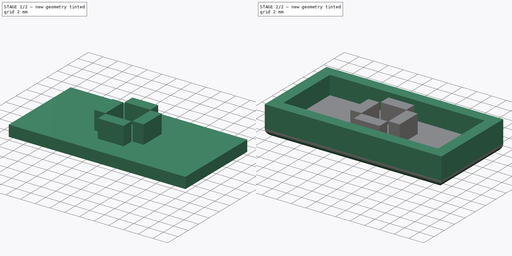
[diagram: build sequence overview — one tinted view per stage of 2, left to right]
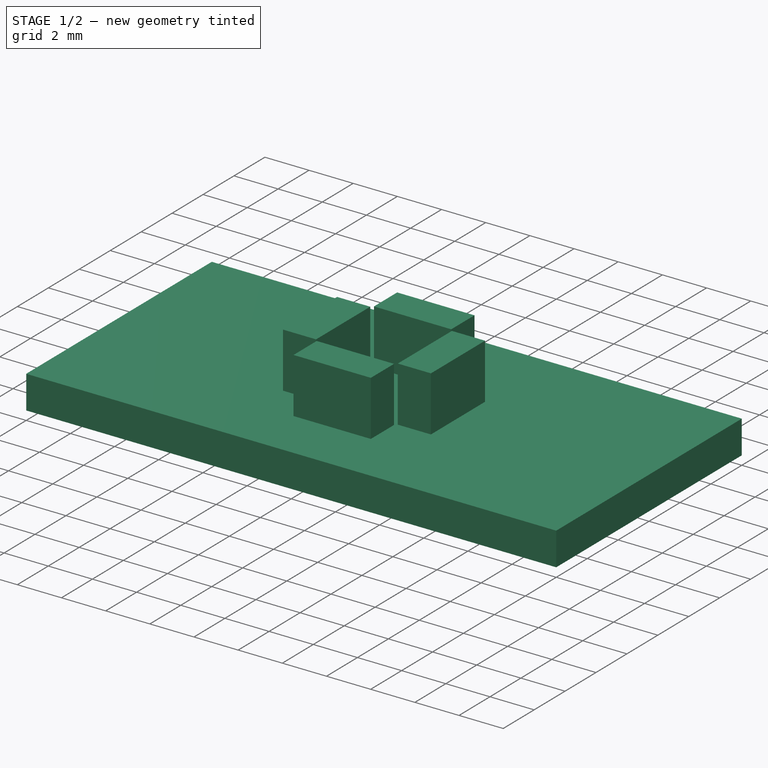
[diagram: stage 1 of 2 — iso view after this stage's code; geometry added in this stage tinted green]
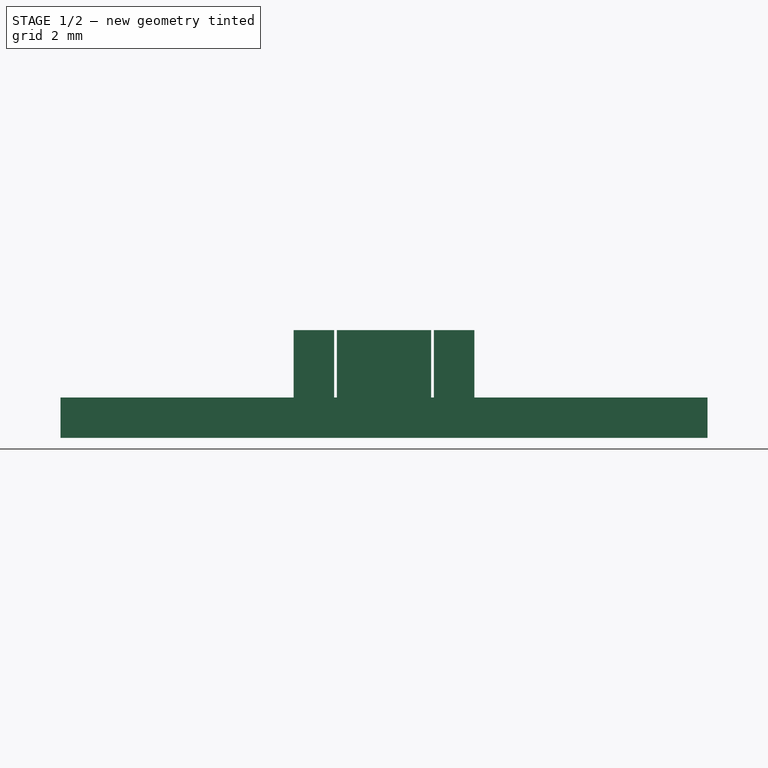
[diagram: stage 1 of 2 — front view after this stage's code; geometry added in this stage tinted green]
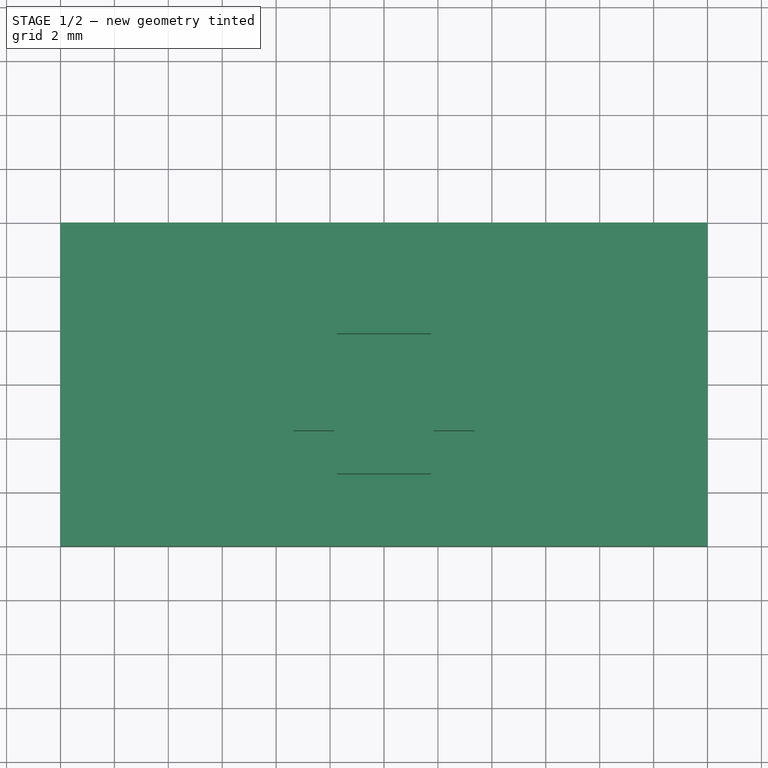
[diagram: stage 1 of 2 — top view after this stage's code; geometry added in this stage tinted green]
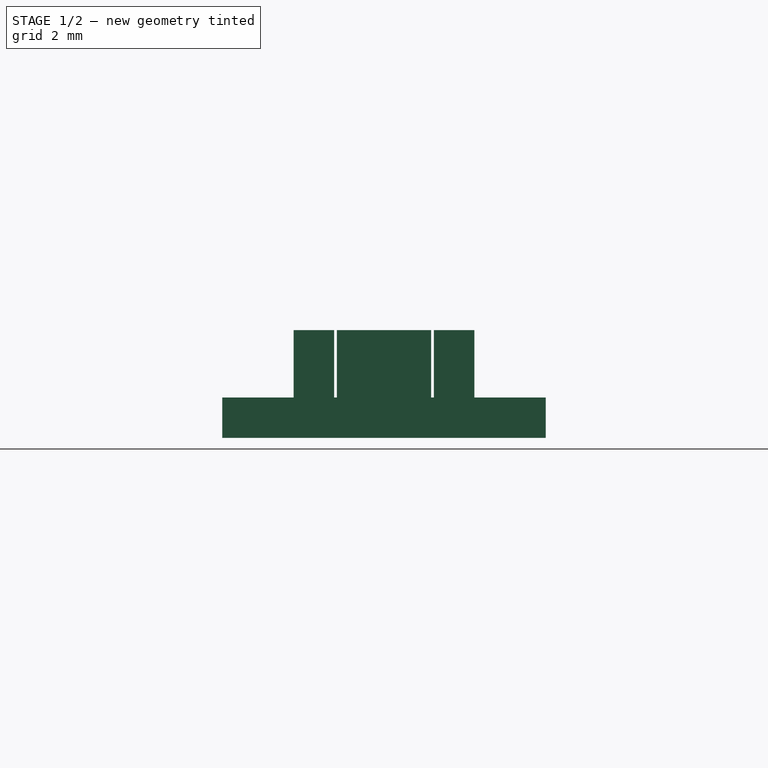
[diagram: stage 1 of 2 — right view after this stage's code; geometry added in this stage tinted green]
FCSTD DOCUMENT  (FreeCAD 0.19R24291 (Git))
Label: keys-return
License: All rights reserved
LicenseURL: http://en.wikipedia.org/wiki/All_rights_reserved
objects: Sketcher::SketchObject×3, PartDesign::Pad×3, Spreadsheet::Sheet×1, PartDesign::Fillet×1, PartDesign::Body×1
note: 12 computed .brp shape members not serialized (recipe doc carries the construction recipe); baked Part::Feature solids carry a one-line shape summary decoded from their .brp

FEATURE [Spreadsheet::Sheet] Spreadsheet  label="Masse"
  cells = A2=Tastenlänge; B2(tab)==24mm; A3=Tastenknuppel; B3(auf)==3.5mm; A4=Höhe Aufnahme; B4(aufh)==4mm; A5=Tastenbreite; B5(keyl)==12mm; A6=Tastenhöhe; B6(keyh)==4mm; A7=Wandstärke1; B7(w1)==1.5mm; A8=Wandstärke2; B8(w2)==1.5mm; A9=Tolleranz; B9(Tol)==0.1mm
FEATURE [Sketcher::SketchObject] Sketch
  FullyConstrained = true
  MapMode = 5
  Support = -> [XY_Plane]
  expr: Constraints[5] = Spreadsheet.keyl
  expr: Constraints[9] = Spreadsheet.tab
  sketch-geometry (4):
    g0: LineSegment StartX=-12 StartY=6 StartZ=0 EndX=12 EndY=6 EndZ=0
    g1: LineSegment StartX=12 StartY=6 StartZ=0 EndX=12 EndY=-6 EndZ=0
    g2: LineSegment StartX=12 StartY=-6 StartZ=0 EndX=-12 EndY=-6 EndZ=0
    g3: LineSegment StartX=-12 StartY=-6 StartZ=0 EndX=-12 EndY=6 EndZ=0
  constraints (10):
    c: Coincident(g1,g2)
    c: Coincident(g2,g3)
    c: Coincident(g3,g0)
    c: Horizontal(g2)
    c: Vertical(g3)
    c: DistanceY(g3,g3) = 12
    c: Coincident(g0,g1)
    c: Symmetric(g0,g0,g-2)
    c: Symmetric(g1,g0,g-1)
    c: DistanceX(g0,g0) = 24
FEATURE [PartDesign::Pad] Pad
  Direction = (1,1,1)
  Length = 1.5
  Length2 = 100
  Profile = -> Sketch
  Type = 0
  expr: Length = Spreadsheet.w2
FEATURE [Sketcher::SketchObject] Sketch002
  FullyConstrained = true
  MapMode = 5
  Support = -> [XY_Plane]
  expr: Constraints[42] = Spreadsheet.w1
  expr: Constraints[41] = Spreadsheet.auf
  expr: Constraints[40] = Spreadsheet.Tol
  expr: Constraints[38] = Spreadsheet.auf + 2 * Spreadsheet.Tol
  expr: Constraints[37] = Spreadsheet.auf + 2 * Spreadsheet.Tol
  sketch-geometry (16):
    g0: LineSegment StartX=-1.75 StartY=3.35 StartZ=0 EndX=1.75 EndY=3.35 EndZ=0
    g1: LineSegment StartX=1.75 StartY=3.35 StartZ=0 EndX=1.75 EndY=1.85 EndZ=0
    g2: LineSegment StartX=1.75 StartY=1.85 StartZ=0 EndX=-1.75 EndY=1.85 EndZ=0
    g3: LineSegment StartX=-1.75 StartY=1.85 StartZ=0 EndX=-1.75 EndY=3.35 EndZ=0
    g4: LineSegment StartX=-1.75 StartY=-1.85 StartZ=0 EndX=1.75 EndY=-1.85 EndZ=0
    g5: LineSegment StartX=1.75 StartY=-1.85 StartZ=0 EndX=1.75 EndY=-3.35 EndZ=0
    g6: LineSegment StartX=1.75 StartY=-3.35 StartZ=0 EndX=-1.75 EndY=-3.35 EndZ=0
    g7: LineSegment StartX=-1.75 StartY=-3.35 StartZ=0 EndX=-1.75 EndY=-1.85 EndZ=0
    g8: LineSegment StartX=-3.35 StartY=1.75 StartZ=0 EndX=-1.85 EndY=1.75 EndZ=0
    g9: LineSegment StartX=-1.85 StartY=1.75 StartZ=0 EndX=-1.85 EndY=-1.75 EndZ=0
    g10: LineSegment StartX=-1.85 StartY=-1.75 StartZ=0 EndX=-3.35 EndY=-1.75 EndZ=0
    g11: LineSegment StartX=-3.35 StartY=-1.75 StartZ=0 EndX=-3.35 EndY=1.75 EndZ=0
    g12: LineSegment StartX=1.85 StartY=1.75 StartZ=0 EndX=3.35 EndY=1.75 EndZ=0
    g13: LineSegment StartX=3.35 StartY=1.75 StartZ=0 EndX=3.35 EndY=-1.75 EndZ=0
    g14: LineSegment StartX=3.35 StartY=-1.75 StartZ=0 EndX=1.85 EndY=-1.75 EndZ=0
    g15: LineSegment StartX=1.85 StartY=-1.75 StartZ=0 EndX=1.85 EndY=1.75 EndZ=0
  constraints (44):
    c: Coincident(g0,g1)
    c: Coincident(g1,g2)
    c: Coincident(g2,g3)
    c: Coincident(g3,g0)
    c: Horizontal(g0)
    c: Vertical(g1)
    c: Vertical(g3)
    c: Coincident(g4,g5)
    c: Coincident(g5,g6)
    c: Coincident(g6,g7)
    c: Coincident(g7,g4)
    c: Horizontal(g4)
    c: Horizontal(g6)
    c: Vertical(g5)
    c: Vertical(g7)
    c: Coincident(g8,g9)
    c: Coincident(g9,g10)
    c: Coincident(g10,g11)
    c: Coincident(g11,g8)
    c: Horizontal(g8)
    c: Horizontal(g10)
    c: Vertical(g9)
    c: Coincident(g12,g13)
    c: Coincident(g13,g14)
    c: Coincident(g14,g15)
    c: Coincident(g15,g12)
    c: Horizontal(g12)
    c: Horizontal(g14)
    c: Vertical(g15)
    c: Equal(g14,g7)
    c: Equal(g7,g8)
    c: Equal(g8,g1)
    c: Equal(g15,g4)
    c: Equal(g4,g9)
    c: Equal(g9,g2)
    c: Symmetric(g10,g8,g-1)
    c: Symmetric(g13,g12,g-1)
    c: DistanceX(g8,g12) = 3.7
    c: DistanceY(g4,g1) = 3.7
    c: Symmetric(g4,g1,g-1)
    c: DistanceX(g8,g0) = 0.1
    c: DistanceX(g0,g0) = 3.5
    c: DistanceY(g1,g0) = 1.5
    c: Symmetric(g2,g1,g-2)
FEATURE [Sketcher::SketchObject] Sketch003
  FullyConstrained = true
  MapMode = 5
  Support = -> [XY_Plane]
  expr: Constraints[18] = Spreadsheet.tab
  expr: Constraints[19] = Spreadsheet.keyl
  expr: Constraints[20] = Spreadsheet.keyl - 2 * Spreadsheet.w2
  expr: Constraints[21] = Spreadsheet.tab - 2 * Spreadsheet.w2
  sketch-geometry (8):
    g0: LineSegment StartX=-12 StartY=6 StartZ=0 EndX=12 EndY=6 EndZ=0
    g1: LineSegment StartX=12 StartY=6 StartZ=0 EndX=12 EndY=-6 EndZ=0
    g2: LineSegment StartX=12 StartY=-6 StartZ=0 EndX=-12 EndY=-6 EndZ=0
    g3: LineSegment StartX=-12 StartY=-6 StartZ=0 EndX=-12 EndY=6 EndZ=0
    g4: LineSegment StartX=-10.5 StartY=4.5 StartZ=0 EndX=10.5 EndY=4.5 EndZ=0
    g5: LineSegment StartX=10.5 StartY=4.5 StartZ=0 EndX=10.5 EndY=-4.5 EndZ=0
    g6: LineSegment StartX=10.5 StartY=-4.5 StartZ=0 EndX=-10.5 EndY=-4.5 EndZ=0
    g7: LineSegment StartX=-10.5 StartY=-4.5 StartZ=0 EndX=-10.5 EndY=4.5 EndZ=0
  constraints (22):
    c: Coincident(g0,g1)
    c: Coincident(g1,g2)
    c: Coincident(g2,g3)
    c: Coincident(g3,g0)
    c: Horizontal(g0)
    c: Horizontal(g2)
    c: Vertical(g1)
    c: Vertical(g3)
    c: Coincident(g4,g5)
    c: Coincident(g5,g6)
    c: Coincident(g6,g7)
    c: Coincident(g7,g4)
    c: Horizontal(g4)
    c: Horizontal(g6)
    c: Vertical(g5)
    c: Vertical(g7)
    c: Symmetric(g6,g4,g-1)
    c: Symmetric(g2,g0,g-1)
    c: DistanceX(g0,g0) = 24
    c: DistanceY(g3,g3) = 12
    c: DistanceY(g5,g5) = 9
    c: DistanceX(g6,g6) = 21
FEATURE [PartDesign::Pad] Pad002
  BaseFeature = -> Pad
  Direction = (1,1,1)
  Length = 4
  Length2 = 100
  Profile = -> Sketch002
  Refine = true
  Type = 0
  expr: Length = Spreadsheet.aufh
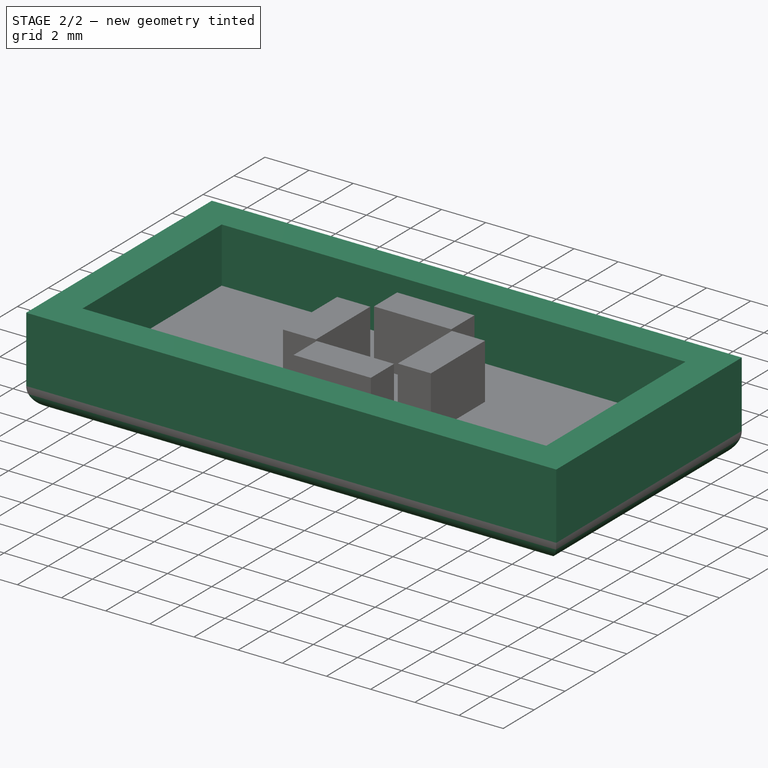
[diagram: stage 2 of 2 — iso view after this stage's code; geometry added in this stage tinted green]
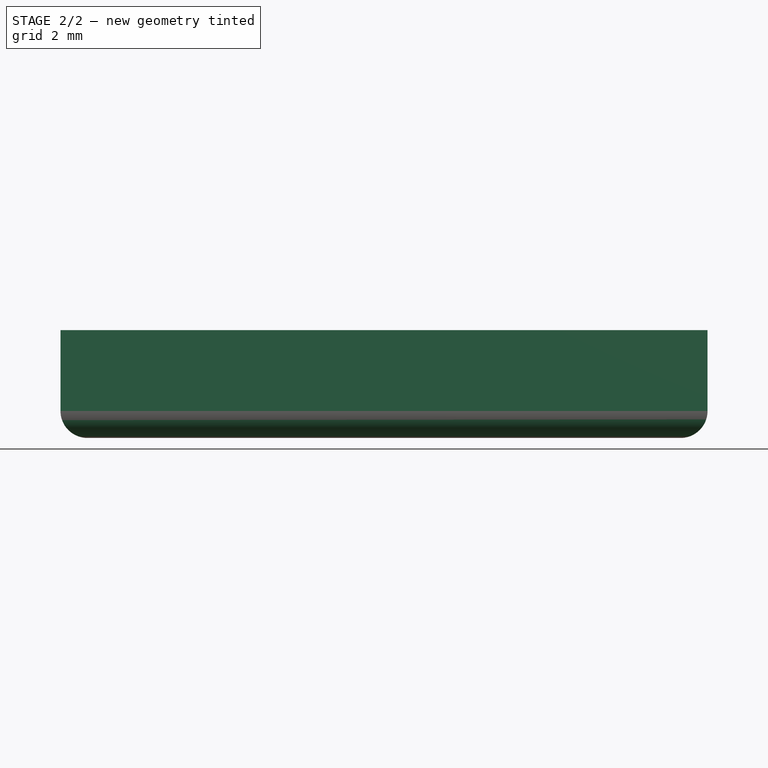
[diagram: stage 2 of 2 — front view after this stage's code; geometry added in this stage tinted green]
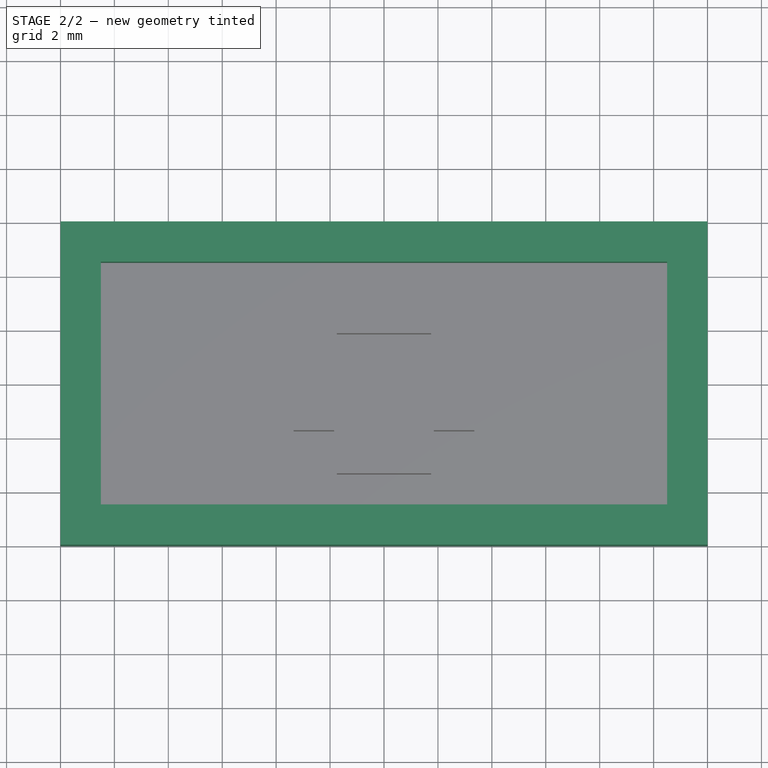
[diagram: stage 2 of 2 — top view after this stage's code; geometry added in this stage tinted green]
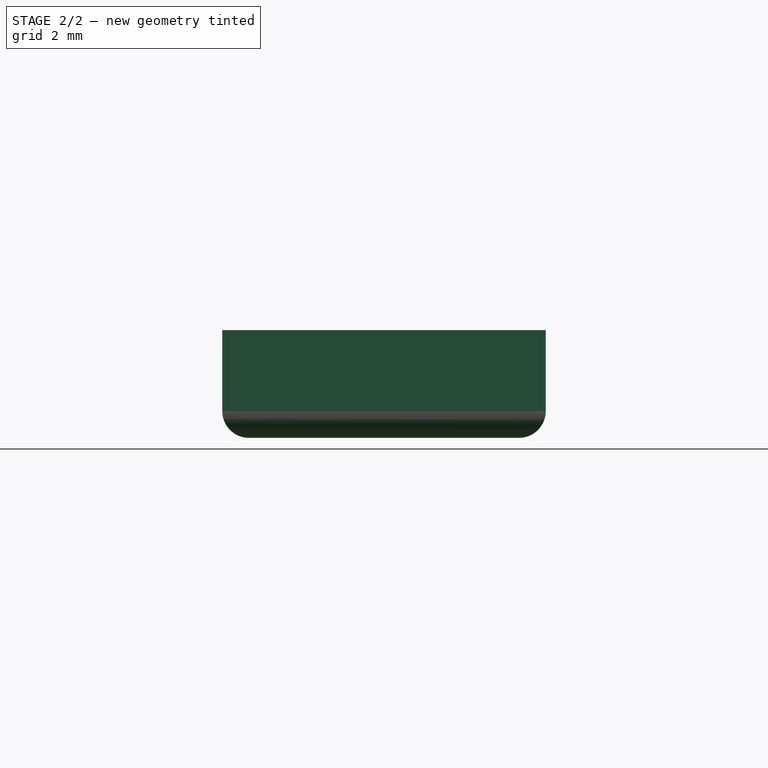
[diagram: stage 2 of 2 — right view after this stage's code; geometry added in this stage tinted green]
FEATURE [PartDesign::Pad] Pad003
  BaseFeature = -> Pad002
  Direction = (1,1,1)
  Length = 4
  Length2 = 100
  Profile = -> Sketch003
  Refine = true
  Type = 0
  expr: Length = Spreadsheet.keyh
FEATURE [PartDesign::Fillet] Fillet
  Base = -> Pad003 [Edge69,Edge72,Edge71,Edge67]
  BaseFeature = -> Pad003
  Radius = 1
  SupportTransform = false
FEATURE [PartDesign::Body] Body
  Group = -> [Sketch,Pad,Sketch002,Pad002,Sketch003,Pad003,Fillet]
  Origin = -> Origin
  Tip = -> Fillet
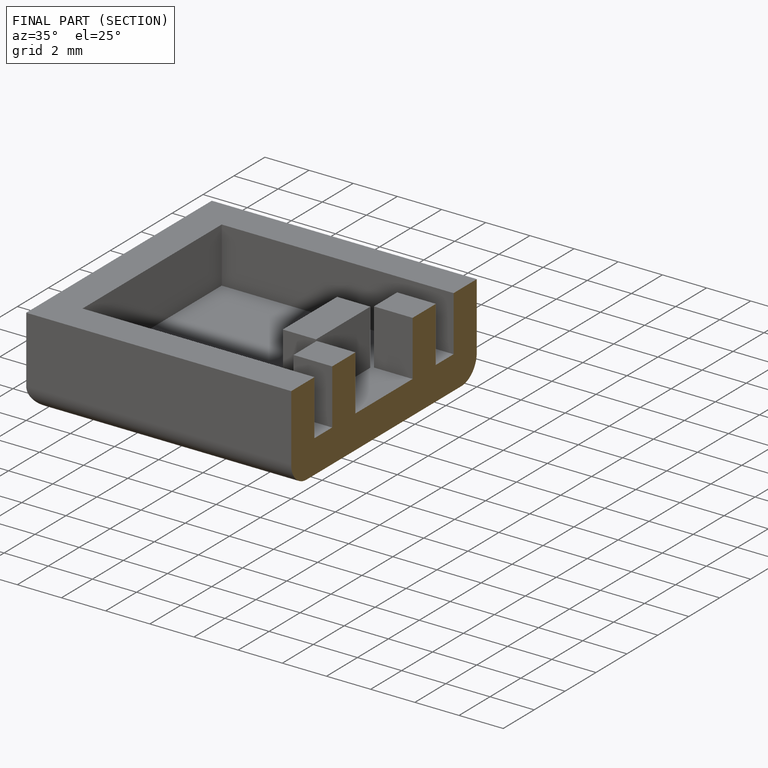
[diagram: finished part — half-section view (interior)]
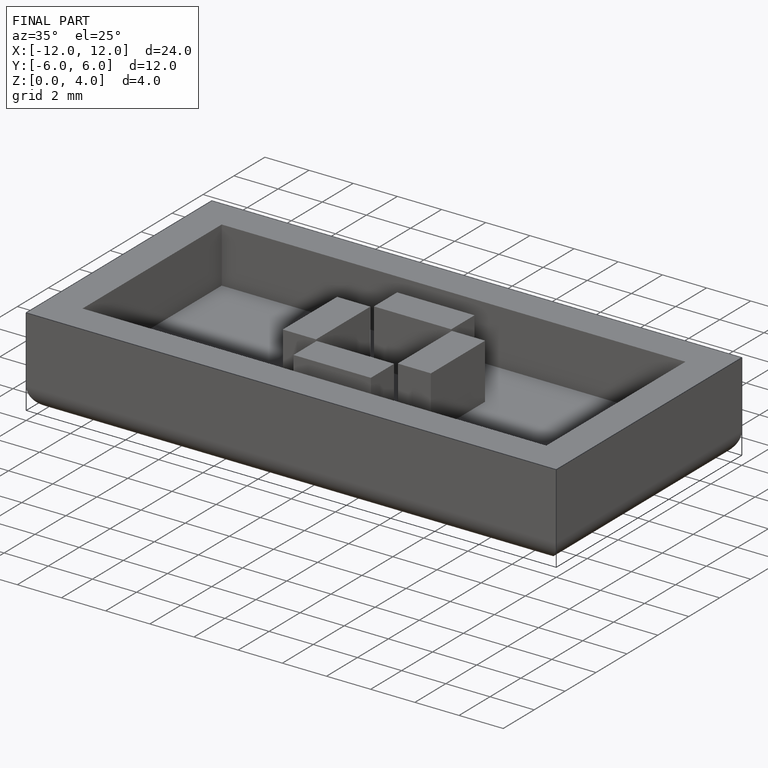
[diagram: finished part — iso view with bounding-box wireframe]
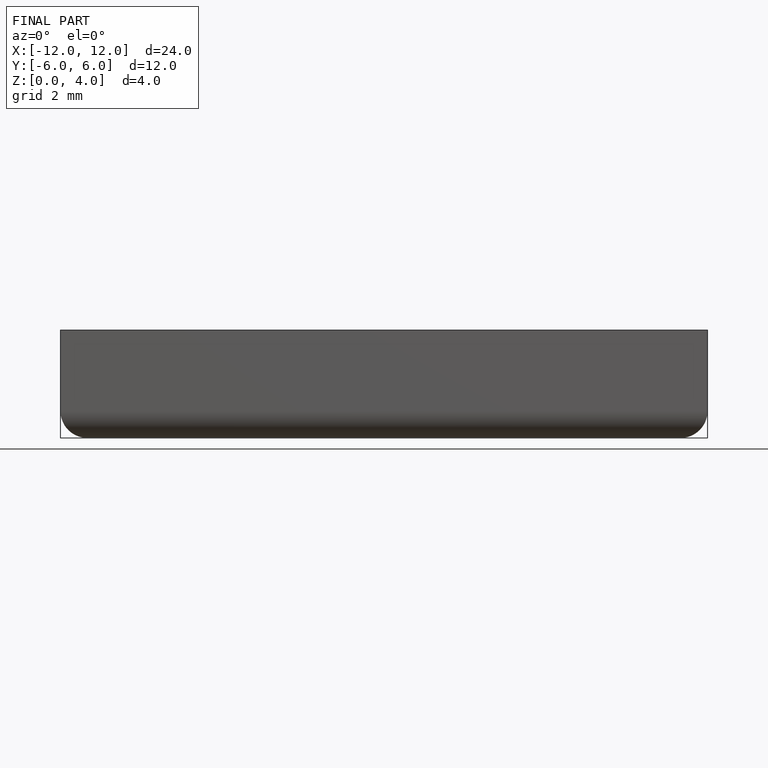
[diagram: finished part — front view with bounding-box wireframe]
